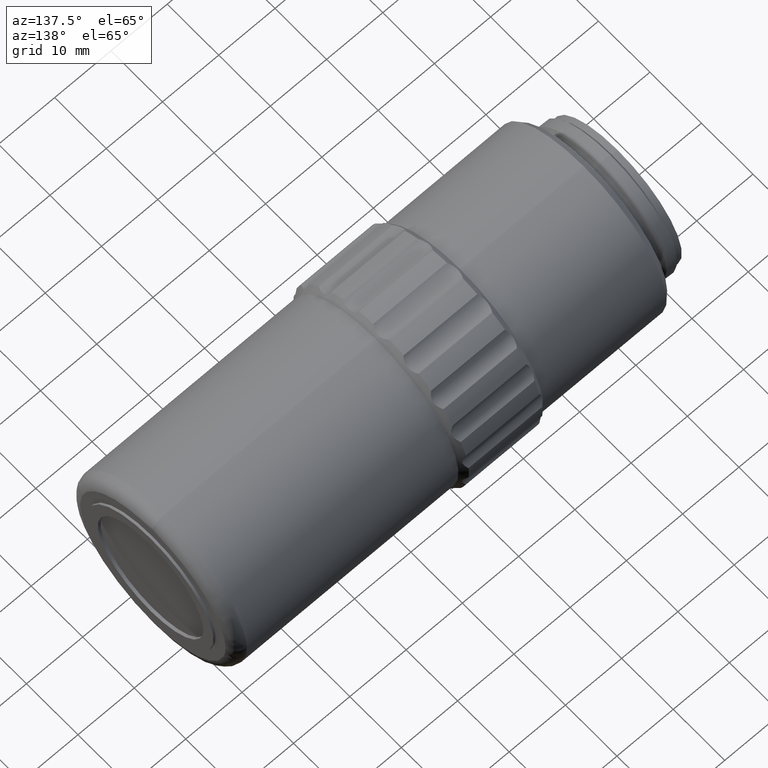
[diagram: clean part render]
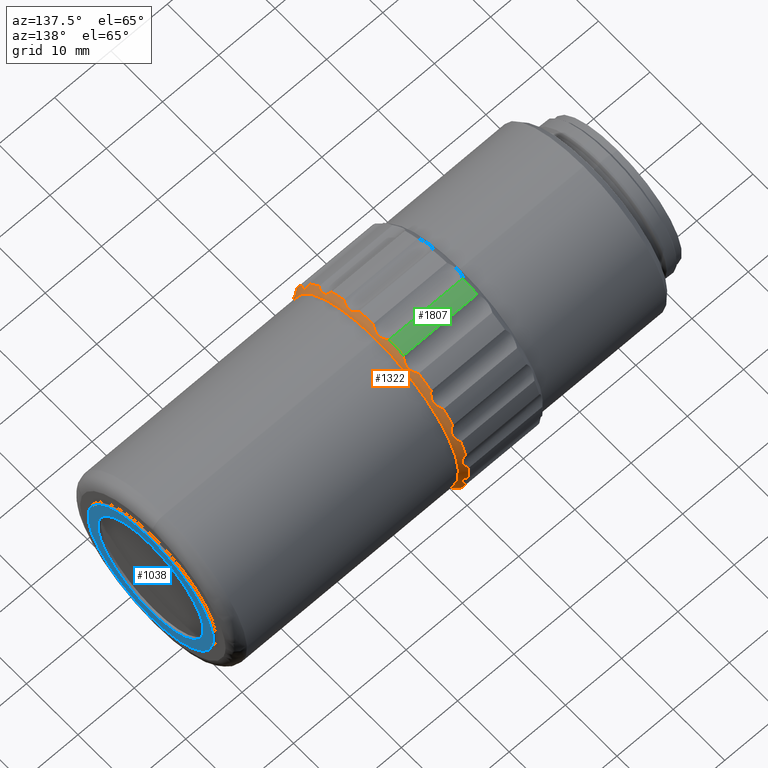
[diagram: same view with three faces highlighted in distinct colors, each labeled with its STEP entity id]
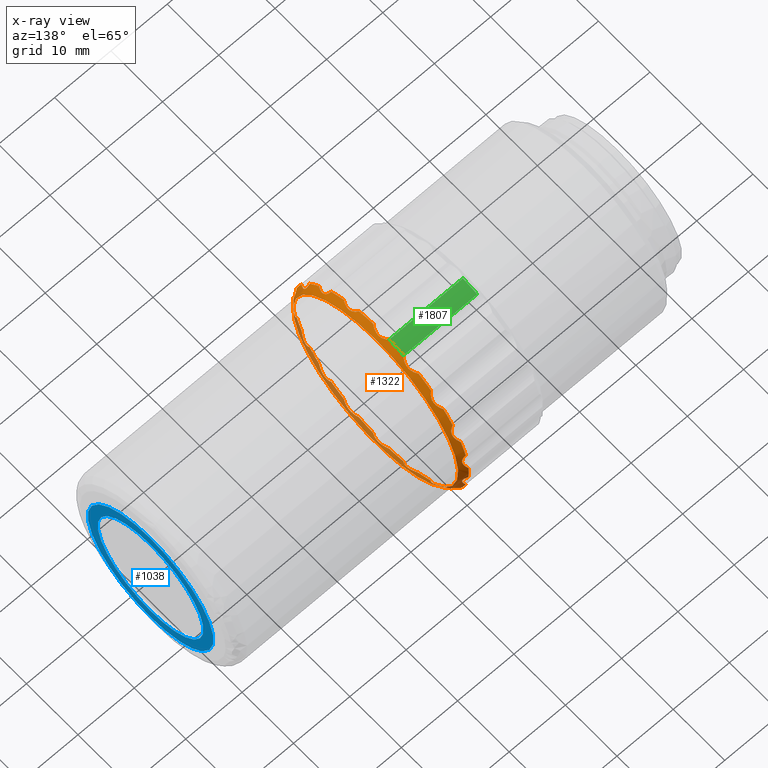
[diagram: x-ray of the same camera — body ghosted, the three highlighted faces saturated]
A machine part, auxiliary view with three faces highlighted in distinct colors.
The next image is the same camera in x-ray (body ghosted, the three faces saturated) — at least one of them is partly hidden behind the body in this view.
Their STEP definitions:

[orange] entity #1322 — the highlighted conical surface has half-angle 45 deg.
#5 = CIRCLE ( 'NONE', #290, 17.00000000000000000 ) ;
#10 = CARTESIAN_POINT ( 'NONE',  ( 49.33703999999998757, 29.08007986503451647, 1.416514203673290728 ) ) ;
#20 = CARTESIAN_POINT ( 'NONE',  ( 49.33703999999997336, 41.68421451916363196, 16.43753695927285818 ) ) ;
#22 = CARTESIAN_POINT ( 'NONE',  ( 49.82519313553095941, 60.17768004909311230, 8.499872551038851753 ) ) ;
#23 = EDGE_CURVE ( 'NONE', #1147, #1777, #1562, .T. ) ;
#26 = CARTESIAN_POINT ( 'NONE',  ( 49.83718322546594948, 35.52309574243637513, -12.73030636577401431 ) ) ;
#27 = CARTESIAN_POINT ( 'NONE',  ( 49.33704000000001599, 46.02096199999999726, 0.000000000000000000 ) ) ;
#32 = CARTESIAN_POINT ( 'NONE',  ( 49.83718322546591395, 29.79624668935391441, -3.004082092195002662 ) ) ;
#42 = CARTESIAN_POINT ( 'NONE',  ( 49.48415766876006927, 29.24340012357270169, 1.604150078087035247 ) ) ;
#52 = B_SPLINE_CURVE_WITH_KNOTS ( 'NONE', 3,
 ( #20, #1750, #166, #717, #1011, #315, #2271, #326, #1358, #1227, #2076, #1709, #705, #668 ),
 .UNSPECIFIED., .F., .F.,
 ( 4, 2, 2, 2, 2, 2, 4 ),
 ( 1.430489624538199204E-17, 0.0008570537395405920496, 0.001285580609310877503, 0.001714107479081163283, 0.002142634348851449062, 0.002571161218621734624, 0.003428214958162300111 ),
 .UNSPECIFIED. ) ;
#64 = CARTESIAN_POINT ( 'NONE',  ( 49.77824610092928026, 56.22807377565807485, 13.03947610223928599 ) ) ;
#67 = CARTESIAN_POINT ( 'NONE',  ( 49.33704000000000889, 46.02096199999999726, 0.000000000000000000 ) ) ;
#69 = VERTEX_POINT ( 'NONE', #827 ) ;
#73 = CARTESIAN_POINT ( 'NONE',  ( 49.82422713112014634, 51.39480538622076011, -15.61454086166568445 ) ) ;
#78 = DIRECTION ( 'NONE',  ( 1.000000000000000000, -0.000000000000000000, -0.000000000000000000 ) ) ;
#79 = VERTEX_POINT ( 'NONE', #486 ) ;
#83 = CARTESIAN_POINT ( 'NONE',  ( 49.77690021752869143, 51.14779506847382606, -15.74715537868998183 ) ) ;
#88 = AXIS2_PLACEMENT_3D ( 'NONE', #1836, #415, #427 ) ;
#90 = VERTEX_POINT ( 'NONE', #1906 ) ;
#92 = DIRECTION ( 'NONE',  ( 1.000000000000000000, -0.000000000000000000, -0.000000000000000000 ) ) ;
#93 = CARTESIAN_POINT ( 'NONE',  ( 49.83718322546596369, 35.30699293778217651, 12.54897458209229022 ) ) ;
#95 = CARTESIAN_POINT ( 'NONE',  ( 49.82422713112009660, 56.85662936152226621, 12.46115531925905273 ) ) ;
#97 = CARTESIAN_POINT ( 'NONE',  ( 49.48389740914204538, 55.79883465147821653, -13.72813594343331189 ) ) ;
#100 = ORIENTED_EDGE ( 'NONE', *, *, #1928, .F. ) ;
#106 = B_SPLINE_CURVE_WITH_KNOTS ( 'NONE', 3,
 ( #719, #340, #1035, #2078, #1926, #1902, #892, #1026, #22, #1737, #1413, #376, #2126, #2272 ),
 .UNSPECIFIED., .F., .F.,
 ( 4, 2, 2, 2, 2, 2, 4 ),
 ( 1.821459649775647449E-17, 0.0008570537395405478142, 0.001285580609310816788, 0.001714107479081083485, 0.002142634348851350616, 0.002571161218621617530, 0.003428214958162146588 ),
 .UNSPECIFIED. ) ;
#110 = CARTESIAN_POINT ( 'NONE',  ( 49.33703999999998757, 29.61726367720591568, 4.463034991433923793 ) ) ;
#114 = CARTESIAN_POINT ( 'NONE',  ( 49.48415766876006927, 62.79852387642730349, -1.604150078087053233 ) ) ;
#126 = CARTESIAN_POINT ( 'NONE',  ( 49.82422713112008950, 62.23047274774312143, -3.153385542406664577 ) ) ;
#130 = CARTESIAN_POINT ( 'NONE',  ( 49.61011795298380633, 55.91343442325894841, 13.49056406336132952 ) ) ;
#136 = CARTESIAN_POINT ( 'NONE',  ( 49.77824610092927315, 62.22167693136037769, 3.427813229224471847 ) ) ;
#143 = CARTESIAN_POINT ( 'NONE',  ( 49.74291650738140191, 31.31202075032431154, 7.683006173255041205 ) ) ;
#148 = VERTEX_POINT ( 'NONE', #1535 ) ;
#150 = CARTESIAN_POINT ( 'NONE',  ( 49.33703999999995915, 59.90894840009008959, -9.804276299192858701 ) ) ;
#151 = CARTESIAN_POINT ( 'NONE',  ( 49.33704000000000889, 50.35770948083630572, 16.43753695927281200 ) ) ;
#154 = CARTESIAN_POINT ( 'NONE',  ( 49.33703999999999468, 61.45570754086772070, 7.125210880294360116 ) ) ;
#155 = CARTESIAN_POINT ( 'NONE',  ( 49.33704000000000889, 46.02096199999999726, 0.000000000000000000 ) ) ;
#156 = CARTESIAN_POINT ( 'NONE',  ( 49.77690021752860616, 31.97150365186628918, 8.767556099430427352 ) ) ;
#166 = CARTESIAN_POINT ( 'NONE',  ( 49.60850845692043265, 41.34222858161454184, 16.06300466438845120 ) ) ;
#168 = DIRECTION ( 'NONE',  ( 1.000000000000000000, -0.000000000000000000, -0.000000000000000000 ) ) ;
#169 = CARTESIAN_POINT ( 'NONE',  ( 49.48389740914201695, 36.24308934852177089, 13.72813594343331545 ) ) ;
#179 = AXIS2_PLACEMENT_3D ( 'NONE', #1108, #783, #2177 ) ;
#180 = CARTESIAN_POINT ( 'NONE',  ( 49.33703999999998047, 29.08007986503451647, -1.416514203673299832 ) ) ;
#182 = CARTESIAN_POINT ( 'NONE',  ( 49.33703999999999468, 46.02096199999999726, 0.000000000000000000 ) ) ;
#186 = DIRECTION ( 'NONE',  ( 0.000000000000000000, 0.000000000000000000, 1.000000000000000000 ) ) ;
#196 = ORIENTED_EDGE ( 'NONE', *, *, #561, .T. ) ;
#201 = EDGE_CURVE ( 'NONE', #958, #69, #2114, .T. ) ;
#213 = B_SPLINE_CURVE_WITH_KNOTS ( 'NONE', 3,
 ( #973, #1720, #504, #845, #1198, #310, #2086, #1185, #1881, #136, #479, #1355, #2243, #651 ),
 .UNSPECIFIED., .F., .F.,
 ( 4, 2, 2, 2, 2, 2, 4 ),
 ( 3.903127820947815962E-18, 0.0008570537395405356711, 0.001285580609310801392, 0.001714107479081067439, 0.002142634348851333269, 0.002571161218621598882, 0.003428214958162131842 ),
 .UNSPECIFIED. ) ;
#218 = AXIS2_PLACEMENT_3D ( 'NONE', #67, #943, #2010 ) ;
#221 = CARTESIAN_POINT ( 'NONE',  ( 49.83718322546597790, 51.79679758193721995, -15.45657204746853175 ) ) ;
#226 = CARTESIAN_POINT ( 'NONE',  ( 49.48415766876007638, 34.19973174975011432, 12.01325914816416329 ) ) ;
#230 = CARTESIAN_POINT ( 'NONE',  ( 49.74229137359053965, 57.21721963540510814, 12.24933554730703378 ) ) ;
#232 = CARTESIAN_POINT ( 'NONE',  ( 49.74229137359054675, 56.13999288115842035, -13.15323611948971738 ) ) ;
#237 = EDGE_CURVE ( 'NONE', #1995, #634, #413, .T. ) ;
#243 = DIRECTION ( 'NONE',  ( 1.000000000000000000, -0.000000000000000000, -0.000000000000000000 ) ) ;
#244 = CARTESIAN_POINT ( 'NONE',  ( 49.48415766876009059, 47.35457561164054852, -16.80123075031171709 ) ) ;
#246 = DIRECTION ( 'NONE',  ( 0.000000000000000000, 1.000000000000000000, 6.217248937900876626E-15 ) ) ;
#249 = CARTESIAN_POINT ( 'NONE',  ( 49.33704000000000889, 50.35770948083630572, 16.43753695927281200 ) ) ;
#266 = CARTESIAN_POINT ( 'NONE',  ( 49.77690021752864880, 45.45276486285489881, -16.55096588861032814 ) ) ;
#272 = ORIENTED_EDGE ( 'NONE', *, *, #2115, .T. ) ;
#277 = CARTESIAN_POINT ( 'NONE',  ( 49.33703999999998047, 44.47420285922230221, -16.92948717948720727 ) ) ;
#278 = CARTESIAN_POINT ( 'NONE',  ( 49.74229137359051123, 45.31785217137128541, -16.58035111081102997 ) ) ;
#290 = AXIS2_PLACEMENT_3D ( 'NONE', #2093, #1741, #513 ) ;
#297 = CARTESIAN_POINT ( 'NONE',  ( 49.60850845692043976, 62.27129880966106157, -3.979600334337187739 ) ) ;
#305 = ORIENTED_EDGE ( 'NONE', *, *, #1801, .T. ) ;
#310 = CARTESIAN_POINT ( 'NONE',  ( 49.82422713112008950, 62.33144101137909843, 2.580766064489510292 ) ) ;
#315 = CARTESIAN_POINT ( 'NONE',  ( 49.82422713112011081, 40.64711861377921309, 15.61454086166572708 ) ) ;
#317 = CARTESIAN_POINT ( 'NONE',  ( 49.82422713112009660, 31.86752573897096852, 8.507192313874586631 ) ) ;
#318 = CARTESIAN_POINT ( 'NONE',  ( 49.82519313553100915, 45.73821546641686098, 16.51001374024769319 ) ) ;
#323 = CARTESIAN_POINT ( 'NONE',  ( 49.77690021752858485, 60.07042034813371600, -8.767556099430425576 ) ) ;
#325 = ORIENTED_EDGE ( 'NONE', *, *, #201, .T. ) ;
#326 = CARTESIAN_POINT ( 'NONE',  ( 49.83718322546596369, 40.24512641806275326, 15.45657204746855840 ) ) ;
#329 = CARTESIAN_POINT ( 'NONE',  ( 49.33704000000000178, 36.32378364731472686, 13.96297718956139100 ) ) ;
#330 = CARTESIAN_POINT ( 'NONE',  ( 49.48415766876009769, 44.68734838835945311, 16.80123075031170998 ) ) ;
#331 = AXIS2_PLACEMENT_3D ( 'NONE', #2023, #631, #246 ) ;
#334 = ORIENTED_EDGE ( 'NONE', *, *, #1794, .T. ) ;
#340 = CARTESIAN_POINT ( 'NONE',  ( 49.48389740914198853, 61.23844647888725490, 7.245459005800728214 ) ) ;
#348 = CARTESIAN_POINT ( 'NONE',  ( 49.33703999999998047, 46.02096199999999726, 0.000000000000000000 ) ) ;
#349 = ORIENTED_EDGE ( 'NONE', *, *, #2268, .T. ) ;
#351 = DIRECTION ( 'NONE',  ( 0.000000000000000000, 1.000000000000000000, -3.552713678800500929E-15 ) ) ;
#356 = CARTESIAN_POINT ( 'NONE',  ( 49.60850845692041844, 32.11174389140475682, 9.297543592584467831 ) ) ;
#357 = CARTESIAN_POINT ( 'NONE',  ( 49.48415766876009059, 36.24294634268018456, -13.72771975950780288 ) ) ;
#363 = VERTEX_POINT ( 'NONE', #1453 ) ;
#364 = CARTESIAN_POINT ( 'NONE',  ( 49.48415766876006927, 61.23806145043451465, -7.245672108642466469 ) ) ;
#376 = CARTESIAN_POINT ( 'NONE',  ( 49.61011795298376370, 59.93088999195955324, 9.293558664531927249 ) ) ;
#379 = ORIENTED_EDGE ( 'NONE', *, *, #1861, .T. ) ;
#384 = CARTESIAN_POINT ( 'NONE',  ( 49.33704000000001599, 50.35770948083634835, -16.43753695927276226 ) ) ;
#386 = AXIS2_PLACEMENT_3D ( 'NONE', #348, #1732, #1582 ) ;
#387 = CARTESIAN_POINT ( 'NONE',  ( 49.60850845692045397, 29.77062519033894006, 3.979600334337169532 ) ) ;
#396 = CARTESIAN_POINT ( 'NONE',  ( 49.61011795298376370, 36.12848957674106742, -13.49056406336132952 ) ) ;
#406 = EDGE_CURVE ( 'NONE', #1583, #148, #1470, .T. ) ;
#407 = CARTESIAN_POINT ( 'NONE',  ( 50.33704000000000178, 46.02096199999999726, -2.040851148208057549E-16 ) ) ;
#412 = CARTESIAN_POINT ( 'NONE',  ( 49.33703999999995915, 59.90894840009008959, -9.804276299192858701 ) ) ;
#413 = CIRCLE ( 'NONE', #1698, 17.00000000000000000 ) ;
#414 = CARTESIAN_POINT ( 'NONE',  ( 49.33703999999999468, 46.02096199999999726, 0.000000000000000000 ) ) ;
#415 = DIRECTION ( 'NONE',  ( 1.000000000000000000, -0.000000000000000000, -0.000000000000000000 ) ) ;
#419 = EDGE_CURVE ( 'NONE', #2035, #1353, #1446, .T. ) ;
#421 = DIRECTION ( 'NONE',  ( 0.000000000000000000, 1.000000000000000000, 0.000000000000000000 ) ) ;
#425 = AXIS2_PLACEMENT_3D ( 'NONE', #596, #1786, #1612 ) ;
#427 = DIRECTION ( 'NONE',  ( 0.000000000000000000, 1.000000000000000000, 0.000000000000000000 ) ) ;
#429 = DIRECTION ( 'NONE',  ( 0.000000000000000000, 1.000000000000000000, 0.000000000000000000 ) ) ;
#433 = DIRECTION ( 'NONE',  ( 1.000000000000000000, -0.000000000000000000, -0.000000000000000000 ) ) ;
#434 = CIRCLE ( 'NONE', #331, 17.00000000000001421 ) ;
#437 = CARTESIAN_POINT ( 'NONE',  ( 49.48389740914199564, 44.68697132165851826, -16.80145764331209080 ) ) ;
#440 = ORIENTED_EDGE ( 'NONE', *, *, #1088, .T. ) ;
#441 = VERTEX_POINT ( 'NONE', #1464 ) ;
#443 = CARTESIAN_POINT ( 'NONE',  ( 49.33703999999998757, 62.42466032279407528, -4.463034991433911358 ) ) ;
#455 = CARTESIAN_POINT ( 'NONE',  ( 49.74229137359049702, 62.22732658115022275, -3.571575765922810231 ) ) ;
#456 = CARTESIAN_POINT ( 'NONE',  ( 49.82422713112015344, 51.94119253261678182, 15.41567220399189075 ) ) ;
#460 = CARTESIAN_POINT ( 'NONE',  ( 49.48415766876011901, 55.79897765731979575, 13.72771975950780821 ) ) ;
#466 = CARTESIAN_POINT ( 'NONE',  ( 49.33704000000002310, 46.02096199999999726, 0.000000000000000000 ) ) ;
#477 = ORIENTED_EDGE ( 'NONE', *, *, #553, .T. ) ;
#479 = CARTESIAN_POINT ( 'NONE',  ( 49.74291650738140191, 62.22720588179112156, 3.569201001427911191 ) ) ;
#486 = CARTESIAN_POINT ( 'NONE',  ( 49.33703999999998757, 38.77725821771979042, -15.37949139323468373 ) ) ;
#492 = EDGE_CURVE ( 'NONE', #1425, #1995, #530, .T. ) ;
#493 = CIRCLE ( 'NONE', #1140, 17.00000000000000000 ) ;
#494 = CARTESIAN_POINT ( 'NONE',  ( 49.60850845692040423, 59.93018010859523770, -9.297543592584473160 ) ) ;
#497 = CARTESIAN_POINT ( 'NONE',  ( 49.77690021752867011, 39.82626761767232182, -15.35848564612279077 ) ) ;
#504 = CARTESIAN_POINT ( 'NONE',  ( 49.60850845692041844, 62.65238706205303032, 1.818341456876850781 ) ) ;
#512 = CARTESIAN_POINT ( 'NONE',  ( 49.83718322546592816, 31.66112224774798278, 8.127785578975540659 ) ) ;
#513 = DIRECTION ( 'NONE',  ( 0.000000000000000000, 1.000000000000000000, 2.664535259100375697E-14 ) ) ;
#518 = CARTESIAN_POINT ( 'NONE',  ( 49.33704000000000178, 44.47420285922232353, 16.92948717948717530 ) ) ;
#530 = B_SPLINE_CURVE_WITH_KNOTS ( 'NONE', 3,
 ( #1652, #782, #2187, #230, #1630, #95, #609, #793, #1485, #64, #1506, #130, #460, #1494 ),
 .UNSPECIFIED., .F., .F.,
 ( 4, 2, 2, 2, 2, 2, 4 ),
 ( 2.255140518769849223E-17, 0.0008570537395405681972, 0.001285580609310841074, 0.001714107479081113843, 0.002142634348851386612, 0.002571161218621659597, 0.003428214958162220313 ),
 .UNSPECIFIED. ) ;
#537 = AXIS2_PLACEMENT_3D ( 'NONE', #414, #243, #1813 ) ;
#538 = CARTESIAN_POINT ( 'NONE',  ( 49.82422713112008950, 29.81145125225689796, 3.153385542406650810 ) ) ;
#542 = ORIENTED_EDGE ( 'NONE', *, *, #23, .F. ) ;
#545 = B_SPLINE_CURVE_WITH_KNOTS ( 'NONE', 3,
 ( #443, #1283, #297, #455, #1114, #126, #2003, #2206, #1134, #1820, #984, #1681, #114, #2184 ),
 .UNSPECIFIED., .F., .F.,
 ( 4, 2, 2, 2, 2, 2, 4 ),
 ( 6.071532165918824830E-18, 0.0008570537395405441279, 0.001285580609310812668, 0.001714107479081081534, 0.002142634348851350182, 0.002571161218621618831, 0.003428214958162156129 ),
 .UNSPECIFIED. ) ;
#553 = EDGE_CURVE ( 'NONE', #1646, #2160, #434, .T. ) ;
#555 = CARTESIAN_POINT ( 'NONE',  ( 49.82519313553103046, 51.93341409690916066, -15.41763307084374546 ) ) ;
#561 = EDGE_CURVE ( 'NONE', #90, #2270, #735, .T. ) ;
#562 = CARTESIAN_POINT ( 'NONE',  ( 49.33703999999999468, 38.77725821771978332, 15.37949139323467307 ) ) ;
#563 = CARTESIAN_POINT ( 'NONE',  ( 49.82519313553098783, 31.58149741732376725, 8.010141189208871637 ) ) ;
#564 = CARTESIAN_POINT ( 'NONE',  ( 49.74291650738142323, 52.35012353516404460, -15.34024937236954855 ) ) ;
#574 = CIRCLE ( 'NONE', #825, 17.00000000000001421 ) ;
#575 = EDGE_CURVE ( 'NONE', #1781, #1781, #1343, .T. ) ;
#581 = AXIS2_PLACEMENT_3D ( 'NONE', #407, #1666, #1644 ) ;
#585 = EDGE_CURVE ( 'NONE', #2024, #1764, #1608, .T. ) ;
#593 = CARTESIAN_POINT ( 'NONE',  ( 49.82519313553098073, 35.19193332115171557, 12.46565831306566352 ) ) ;
#595 = CARTESIAN_POINT ( 'NONE',  ( 49.33703999999999468, 53.26466578228019699, -15.37949139323468017 ) ) ;
#596 = CARTESIAN_POINT ( 'NONE',  ( 49.33704000000000889, 46.02096199999999726, 0.000000000000000000 ) ) ;
#602 = CARTESIAN_POINT ( 'NONE',  ( 49.33704000000000178, 53.26466578228019699, 15.37949139323468017 ) ) ;
#609 = CARTESIAN_POINT ( 'NONE',  ( 49.83689420397104186, 56.73900192251907981, 12.54587797077277322 ) ) ;
#611 = CARTESIAN_POINT ( 'NONE',  ( 49.33704000000002310, 46.02096199999999726, 0.000000000000000000 ) ) ;
#615 = CARTESIAN_POINT ( 'NONE',  ( 49.61011795298376370, 34.45315972681317618, 12.08479540418657017 ) ) ;
#620 = CARTESIAN_POINT ( 'NONE',  ( 49.61011795298374949, 57.58876427318683255, -12.08479540418656661 ) ) ;
#624 = DIRECTION ( 'NONE',  ( 1.000000000000000000, -0.000000000000000000, -0.000000000000000000 ) ) ;
#626 = CARTESIAN_POINT ( 'NONE',  ( 49.74229137359054675, 52.35248318087392505, 15.33995586450727622 ) ) ;
#631 = DIRECTION ( 'NONE',  ( 1.000000000000000000, -0.000000000000000000, -0.000000000000000000 ) ) ;
#634 = VERTEX_POINT ( 'NONE', #602 ) ;
#651 = CARTESIAN_POINT ( 'NONE',  ( 49.33704000000001599, 62.42466032279404686, 4.463034991433892706 ) ) ;
#655 = CARTESIAN_POINT ( 'NONE',  ( 49.33703999999999468, 55.71814035268528187, 13.96297718956140166 ) ) ;
#666 = CARTESIAN_POINT ( 'NONE',  ( 49.60850845692048949, 52.76194463661673950, 15.31240733331347492 ) ) ;
#668 = CARTESIAN_POINT ( 'NONE',  ( 49.33703999999999468, 38.77725821771978332, 15.37949139323467307 ) ) ;
#669 = CARTESIAN_POINT ( 'NONE',  ( 49.33704000000001599, 62.42466032279404686, 4.463034991433892706 ) ) ;
#670 = CARTESIAN_POINT ( 'NONE',  ( 49.33704000000000178, 30.58621645913232356, 7.125210880294359228 ) ) ;
#671 = CARTESIAN_POINT ( 'NONE',  ( 49.33704000000000178, 44.47420285922232353, 16.92948717948717530 ) ) ;
#673 = EDGE_CURVE ( 'NONE', #1891, #2012, #1672, .T. ) ;
#678 = CARTESIAN_POINT ( 'NONE',  ( 49.83718322546593527, 60.38080175225200463, -8.127785578975545988 ) ) ;
#683 = CARTESIAN_POINT ( 'NONE',  ( 49.74291650738144455, 41.00885879755396246, -15.81961940227116870 ) ) ;
#684 = CARTESIAN_POINT ( 'NONE',  ( 49.77690021752860616, 29.62277607563510173, -2.314480119284870518 ) ) ;
#685 = CARTESIAN_POINT ( 'NONE',  ( 49.74291650738145165, 32.01281285169071111, -8.896813698364468337 ) ) ;
#686 = CARTESIAN_POINT ( 'NONE',  ( 49.77690021752864169, 46.58915913714510992, 16.55096588861033169 ) ) ;
#688 = VERTEX_POINT ( 'NONE', #110 ) ;
#696 = CARTESIAN_POINT ( 'NONE',  ( 49.83689420397102054, 31.80451600533105250, 8.376639965934812082 ) ) ;
#705 = CARTESIAN_POINT ( 'NONE',  ( 49.48415766876011901, 39.02141578089250373, 15.33186983759482658 ) ) ;
#707 = CARTESIAN_POINT ( 'NONE',  ( 49.60850845692041844, 29.38953693794697131, -1.818341456876848783 ) ) ;
#709 = CARTESIAN_POINT ( 'NONE',  ( 49.83689420397102054, 35.30292207748090760, -12.54587797077277322 ) ) ;
#714 = CARTESIAN_POINT ( 'NONE',  ( 49.33703999999998047, 62.96184413496547450, 1.416514203673303385 ) ) ;
#717 = CARTESIAN_POINT ( 'NONE',  ( 49.74229137359051123, 41.01085505425491107, 15.82091131322985156 ) ) ;
#719 = CARTESIAN_POINT ( 'NONE',  ( 49.33703999999999468, 61.45570754086772070, 7.125210880294360116 ) ) ;
#723 = CARTESIAN_POINT ( 'NONE',  ( 49.33703999999999468, 46.02096199999999726, 0.000000000000000000 ) ) ;
#735 = CIRCLE ( 'NONE', #218, 16.99999999999998579 ) ;
#739 = CARTESIAN_POINT ( 'NONE',  ( 49.48415766876009059, 53.02050821910746947, -15.33186983759483013 ) ) ;
#756 = CARTESIAN_POINT ( 'NONE',  ( 49.33703999999998757, 58.08791284195770288, 11.97450196783888643 ) ) ;
#776 = ORIENTED_EDGE ( 'NONE', *, *, #935, .T. ) ;
#777 = VERTEX_POINT ( 'NONE', #1534 ) ;
#779 = CARTESIAN_POINT ( 'NONE',  ( 49.83689420397103476, 35.52685220674475630, 12.73377765964754893 ) ) ;
#782 = CARTESIAN_POINT ( 'NONE',  ( 49.48389740914200985, 57.84262694411020078, 12.01319058448289923 ) ) ;
#783 = DIRECTION ( 'NONE',  ( -1.000000000000000000, 0.000000000000000000, 0.000000000000000000 ) ) ;
#784 = AXIS2_PLACEMENT_3D ( 'NONE', #1482, #1272, #2171 ) ;
#793 = CARTESIAN_POINT ( 'NONE',  ( 49.83718322546594948, 56.51882825756361228, 12.73030636577400720 ) ) ;
#795 = CARTESIAN_POINT ( 'NONE',  ( 49.82422713112009660, 56.41121047876222860, -12.83490613950239023 ) ) ;
#796 = EDGE_CURVE ( 'NONE', #148, #1315, #1309, .T. ) ;
#804 = CARTESIAN_POINT ( 'NONE',  ( 49.83718322546595658, 56.73493106221783222, -12.54897458209228844 ) ) ;
#809 = EDGE_CURVE ( 'NONE', #1353, #363, #5, .T. ) ;
#820 = CARTESIAN_POINT ( 'NONE',  ( 49.83718322546601343, 51.53170824842818831, 15.55305667428729066 ) ) ;
#822 = EDGE_CURVE ( 'NONE', #69, #1371, #2201, .T. ) ;
#823 = CARTESIAN_POINT ( 'NONE',  ( 49.33703999999997336, 41.68421451916363196, 16.43753695927285818 ) ) ;
#825 = AXIS2_PLACEMENT_3D ( 'NONE', #1034, #1173, #351 ) ;
#826 = CARTESIAN_POINT ( 'NONE',  ( 49.83718322546597079, 45.87991091177963909, 16.49987880921161576 ) ) ;
#827 = CARTESIAN_POINT ( 'NONE',  ( 49.33703999999999468, 33.95401115804229875, -11.97450196783888821 ) ) ;
#835 = CARTESIAN_POINT ( 'NONE',  ( 49.48389740914201695, 39.02098385211959197, -15.33195408286589867 ) ) ;
#837 = EDGE_CURVE ( 'NONE', #688, #1777, #1566, .T. ) ;
#839 = CARTESIAN_POINT ( 'NONE',  ( 49.48389740914198853, 32.13746819945419020, 9.555998637511374127 ) ) ;
#840 = CARTESIAN_POINT ( 'NONE',  ( 49.74229137359052544, 46.72407182862873043, 16.58035111081103352 ) ) ;
#845 = CARTESIAN_POINT ( 'NONE',  ( 49.74229137359048991, 62.47151406203238366, 2.186719745017569494 ) ) ;
#850 = CARTESIAN_POINT ( 'NONE',  ( 49.74229137359051833, 29.57040993796760020, -2.186719745017569050 ) ) ;
#852 = CARTESIAN_POINT ( 'NONE',  ( 49.77690021752864880, 35.81747045796283402, 13.04400552683793890 ) ) ;
#857 = EDGE_CURVE ( 'NONE', #1410, #2216, #2237, .T. ) ;
#862 = CARTESIAN_POINT ( 'NONE',  ( 49.33703999999998757, 47.56772114077767810, -16.92948717948717885 ) ) ;
#864 = CIRCLE ( 'NONE', #900, 17.00000000000000000 ) ;
#866 = CARTESIAN_POINT ( 'NONE',  ( 49.48415766876013322, 41.52778952056902284, -16.24411527478350692 ) ) ;
#867 = DIRECTION ( 'NONE',  ( 0.000000000000000000, 1.000000000000000000, -7.105427357601001859E-15 ) ) ;
#868 = CARTESIAN_POINT ( 'NONE',  ( 49.77824610092933000, 31.96965089949767247, -8.762061639736755225 ) ) ;
#875 = B_SPLINE_CURVE_WITH_KNOTS ( 'NONE', 3,
 ( #1399, #835, #1385, #2261, #497, #1059, #1189, #1530, #2111, #1898, #683, #1760, #866, #2246 ),
 .UNSPECIFIED., .F., .F.,
 ( 4, 2, 2, 2, 2, 2, 4 ),
 ( 1.561251128379126385E-17, 0.0008570537395405857612, 0.001285580609310873817, 0.001714107479081161982, 0.002142634348851452097, 0.002571161218621741996, 0.003428214958162318325 ),
 .UNSPECIFIED. ) ;
#877 = ORIENTED_EDGE ( 'NONE', *, *, #857, .T. ) ;
#880 = CARTESIAN_POINT ( 'NONE',  ( 49.82422713112007528, 29.71048298862090320, -2.580766064489512512 ) ) ;
#881 = CARTESIAN_POINT ( 'NONE',  ( 49.48389740914203827, 30.80347752111280712, -7.245459005800692687 ) ) ;
#882 = CARTESIAN_POINT ( 'NONE',  ( 49.33703999999998757, 29.08007986503451647, 1.416514203673290728 ) ) ;
#887 = CARTESIAN_POINT ( 'NONE',  ( 49.33704000000000178, 36.32378364731472686, -13.96297718956140699 ) ) ;
#892 = CARTESIAN_POINT ( 'NONE',  ( 49.83689420397100633, 60.38356800619005327, 8.123483399945433447 ) ) ;
#900 = AXIS2_PLACEMENT_3D ( 'NONE', #1104, #433, #938 ) ;
#904 = DIRECTION ( 'NONE',  ( 0.000000000000000000, 1.000000000000000000, 8.881784197001252323E-16 ) ) ;
#907 = AXIS2_PLACEMENT_3D ( 'NONE', #1855, #92, #2194 ) ;
#910 = CARTESIAN_POINT ( 'NONE',  ( 49.74229137359052544, 34.82470436459487928, -12.24933554730703378 ) ) ;
#914 = ORIENTED_EDGE ( 'NONE', *, *, #1294, .T. ) ;
#917 = CARTESIAN_POINT ( 'NONE',  ( 49.33703999999998757, 62.42466032279407528, -4.463034991433911358 ) ) ;
#918 = CARTESIAN_POINT ( 'NONE',  ( 49.77690021752861327, 29.82010887047673009, 3.433610011084513580 ) ) ;
#921 = ORIENTED_EDGE ( 'NONE', *, *, #419, .T. ) ;
#926 = CARTESIAN_POINT ( 'NONE',  ( 49.33703999999998757, 33.95401115804232006, 11.97450196783887932 ) ) ;
#928 = CIRCLE ( 'NONE', #784, 17.00000000000000000 ) ;
#930 = CARTESIAN_POINT ( 'NONE',  ( 49.33703999999998757, 47.56772114077767810, -16.92948717948717885 ) ) ;
#932 = CARTESIAN_POINT ( 'NONE',  ( 49.77690021752862748, 56.22445354203716761, -13.04400552683793357 ) ) ;
#935 = EDGE_CURVE ( 'NONE', #1315, #2070, #969, .T. ) ;
#937 = AXIS2_PLACEMENT_3D ( 'NONE', #466, #624, #421 ) ;
#938 = DIRECTION ( 'NONE',  ( 0.000000000000000000, 1.000000000000000000, 1.065814103640150437E-14 ) ) ;
#943 = DIRECTION ( 'NONE',  ( 1.000000000000000000, -0.000000000000000000, -0.000000000000000000 ) ) ;
#949 = CARTESIAN_POINT ( 'NONE',  ( 49.33703999999998047, 29.08007986503451647, -1.416514203673299832 ) ) ;
#955 = CARTESIAN_POINT ( 'NONE',  ( 49.74291650738140902, 46.72175410136632934, -16.57981987161946691 ) ) ;
#958 = VERTEX_POINT ( 'NONE', #1442 ) ;
#959 = ORIENTED_EDGE ( 'NONE', *, *, #809, .T. ) ;
#966 = AXIS2_PLACEMENT_3D ( 'NONE', #155, #168, #867 ) ;
#967 = CARTESIAN_POINT ( 'NONE',  ( 49.83689420397104186, 45.87480198847892154, -16.50012336588021711 ) ) ;
#969 = CIRCLE ( 'NONE', #537, 17.00000000000000000 ) ;
#970 = CARTESIAN_POINT ( 'NONE',  ( 49.33704000000000178, 55.71814035268526766, -13.96297718956138922 ) ) ;
#973 = CARTESIAN_POINT ( 'NONE',  ( 49.33703999999998047, 62.96184413496547450, 1.416514203673303385 ) ) ;
#982 = EDGE_CURVE ( 'NONE', #1795, #958, #2113, .T. ) ;
#984 = CARTESIAN_POINT ( 'NONE',  ( 49.74291650738140191, 62.47058842444242543, -2.188910012077419420 ) ) ;
#991 = VERTEX_POINT ( 'NONE', #1576 ) ;
#992 = ORIENTED_EDGE ( 'NONE', *, *, #982, .T. ) ;
#1011 = CARTESIAN_POINT ( 'NONE',  ( 49.77690021752862748, 40.89412893152615425, 15.74715537869002624 ) ) ;
#1015 = CARTESIAN_POINT ( 'NONE',  ( 49.77824610092929447, 45.45844958071403852, 16.54982318938170849 ) ) ;
#1018 = ORIENTED_EDGE ( 'NONE', *, *, #406, .T. ) ;
#1026 = CARTESIAN_POINT ( 'NONE',  ( 49.83718322546591395, 60.23975066403165357, 8.372093230236091088 ) ) ;
#1028 = CARTESIAN_POINT ( 'NONE',  ( 49.60850845692045397, 36.13051957456375618, 13.49406587643664146 ) ) ;
#1034 = CARTESIAN_POINT ( 'NONE',  ( 49.33703999999998047, 46.02096199999999726, 0.000000000000000000 ) ) ;
#1035 = CARTESIAN_POINT ( 'NONE',  ( 49.60850845692043976, 61.02747999826900838, 7.396964432529773426 ) ) ;
#1049 = CARTESIAN_POINT ( 'NONE',  ( 49.48415766876014743, 32.13747616120609507, -9.555558641669263054 ) ) ;
#1050 = CARTESIAN_POINT ( 'NONE',  ( 49.33703999999998757, 29.61726367720591568, 4.463034991433923793 ) ) ;
#1055 = EDGE_CURVE ( 'NONE', #2160, #441, #1685, .T. ) ;
#1059 = CARTESIAN_POINT ( 'NONE',  ( 49.82422713112013923, 40.10073146738320560, -15.41567220399188543 ) ) ;
#1065 = ORIENTED_EDGE ( 'NONE', *, *, #796, .T. ) ;
#1072 = EDGE_LOOP ( 'NONE', ( #1242 ) ) ;
#1073 = DIRECTION ( 'NONE',  ( -1.000000000000000000, 0.000000000000000000, 0.000000000000000000 ) ) ;
#1085 = CARTESIAN_POINT ( 'NONE',  ( 49.83718322546600632, 31.80217333596844398, -8.372093230236091088 ) ) ;
#1088 = EDGE_CURVE ( 'NONE', #2216, #1646, #1193, .T. ) ;
#1089 = CARTESIAN_POINT ( 'NONE',  ( 49.74229137359050412, 29.81459741884975401, 3.571575765922792911 ) ) ;
#1104 = CARTESIAN_POINT ( 'NONE',  ( 49.33703999999999468, 46.02096199999999726, 0.000000000000000000 ) ) ;
#1107 = CARTESIAN_POINT ( 'NONE',  ( 49.33703999999998047, 44.47420285922230221, -16.92948717948720727 ) ) ;
#1108 = CARTESIAN_POINT ( 'NONE',  ( 49.33704000000000889, 46.02096199999999726, 0.000000000000000000 ) ) ;
#1113 = EDGE_CURVE ( 'NONE', #1383, #1891, #864, .T. ) ;
#1114 = CARTESIAN_POINT ( 'NONE',  ( 49.77690021752859195, 62.22181512952325022, -3.433610011084526459 ) ) ;
#1115 = CIRCLE ( 'NONE', #425, 16.99999999999998579 ) ;
#1129 = CARTESIAN_POINT ( 'NONE',  ( 49.60850845692045397, 44.92366211032621237, -16.69450802511422438 ) ) ;
#1134 = CARTESIAN_POINT ( 'NONE',  ( 49.82519313553096652, 62.32924995403242008, -2.588482820839978160 ) ) ;
#1136 = CARTESIAN_POINT ( 'NONE',  ( 49.77824610092929447, 34.95203119838304673, 12.31632407541566465 ) ) ;
#1140 = AXIS2_PLACEMENT_3D ( 'NONE', #1765, #1073, #186 ) ;
#1142 = CARTESIAN_POINT ( 'NONE',  ( 49.82422713112011792, 45.73023547181939819, -16.51083150983224357 ) ) ;
#1147 = VERTEX_POINT ( 'NONE', #949 ) ;
#1149 = CARTESIAN_POINT ( 'NONE',  ( 49.83689420397109870, 51.80168204276990451, 15.45505450088585064 ) ) ;
#1170 = CARTESIAN_POINT ( 'NONE',  ( 49.74291650738138770, 60.72990324967569364, -7.683006173255046534 ) ) ;
#1173 = DIRECTION ( 'NONE',  ( 1.000000000000000000, -0.000000000000000000, -0.000000000000000000 ) ) ;
#1175 = CARTESIAN_POINT ( 'NONE',  ( 49.33703999999998757, 58.08791284195767446, -11.97450196783888110 ) ) ;
#1185 = CARTESIAN_POINT ( 'NONE',  ( 49.83718322546592816, 62.24567731064608722, 3.004082092195003106 ) ) ;
#1189 = CARTESIAN_POINT ( 'NONE',  ( 49.83689420397107028, 40.24024195723010422, -15.45505450088583821 ) ) ;
#1193 = B_SPLINE_CURVE_WITH_KNOTS ( 'NONE', 3,
 ( #329, #169, #1028, #1726, #852, #1559, #779, #93, #593, #1136, #2153, #615, #226, #926 ),
 .UNSPECIFIED., .F., .F.,
 ( 4, 2, 2, 2, 2, 2, 4 ),
 ( 1.734723475976807094E-18, 0.0008570537395405512836, 0.001285580609310826112, 0.001714107479081100832, 0.002142634348851375336, 0.002571161218621650490, 0.003428214958162204701 ),
 .UNSPECIFIED. ) ;
#1198 = CARTESIAN_POINT ( 'NONE',  ( 49.77690021752860616, 62.41914792436489989, 2.314480119284867854 ) ) ;
#1211 = FACE_BOUND ( 'NONE', #1072, .T. ) ;
#1227 = CARTESIAN_POINT ( 'NONE',  ( 49.77824610092929447, 39.83200033124972350, 15.35935614810683880 ) ) ;
#1228 = CARTESIAN_POINT ( 'NONE',  ( 49.33704000000001599, 29.61726367720594766, -4.463034991433898035 ) ) ;
#1230 = CARTESIAN_POINT ( 'NONE',  ( 49.83718322546592105, 29.74726016049911337, 2.726265681694551635 ) ) ;
#1239 = CARTESIAN_POINT ( 'NONE',  ( 49.82519313553096652, 29.71267404596758155, 2.588482820839964837 ) ) ;
#1242 = ORIENTED_EDGE ( 'NONE', *, *, #575, .F. ) ;
#1247 = CARTESIAN_POINT ( 'NONE',  ( 49.60850845692044686, 34.44935860872440969, -12.08340433005123593 ) ) ;
#1255 = EDGE_CURVE ( 'NONE', #1371, #79, #928, .T. ) ;
#1256 = CARTESIAN_POINT ( 'NONE',  ( 49.77824610092926605, 31.40713848021163557, 7.787761549644993231 ) ) ;
#1272 = DIRECTION ( 'NONE',  ( 1.000000000000000000, -0.000000000000000000, -0.000000000000000000 ) ) ;
#1276 = CARTESIAN_POINT ( 'NONE',  ( 49.82519313553098783, 46.30370853358314776, -16.51001374024769319 ) ) ;
#1281 = ORIENTED_EDGE ( 'NONE', *, *, #1113, .T. ) ;
#1283 = CARTESIAN_POINT ( 'NONE',  ( 49.48389740914200274, 62.33552269872132712, -4.231266864385903936 ) ) ;
#1294 = EDGE_CURVE ( 'NONE', #634, #1583, #1607, .T. ) ;
#1309 = B_SPLINE_CURVE_WITH_KNOTS ( 'NONE', 3,
 ( #1889, #1337, #2264, #840, #686, #1905, #1521, #826, #318, #1015, #1714, #2250, #330, #671 ),
 .UNSPECIFIED., .F., .F.,
 ( 4, 2, 2, 2, 2, 2, 4 ),
 ( 0.000000000000000000, 0.0008570537395405975790, 0.001285580609310884876, 0.001714107479081172390, 0.002142634348851459904, 0.002571161218621746767, 0.003428214958162296641 ),
 .UNSPECIFIED. ) ;
#1313 = CARTESIAN_POINT ( 'NONE',  ( 49.33703999999998757, 58.08791284195767446, -11.97450196783888110 ) ) ;
#1315 = VERTEX_POINT ( 'NONE', #518 ) ;
#1321 = CARTESIAN_POINT ( 'NONE',  ( 50.33704000000000178, 46.02096199999999726, 15.99999999999999645 ) ) ;
#1322 = ADVANCED_FACE ( 'NONE', ( #1747, #1211 ), #1365, .T. ) ;
#1337 = CARTESIAN_POINT ( 'NONE',  ( 49.48389740914203117, 47.35495267834148336, 16.80145764331209435 ) ) ;
#1343 = CIRCLE ( 'NONE', #581, 15.99999999999999645 ) ;
#1344 = CARTESIAN_POINT ( 'NONE',  ( 49.33703999999998757, 33.95401115804232006, 11.97450196783887932 ) ) ;
#1347 = CARTESIAN_POINT ( 'NONE',  ( 49.74229137359058228, 31.31040182005778050, -7.681264582162521393 ) ) ;
#1353 = VERTEX_POINT ( 'NONE', #862 ) ;
#1355 = CARTESIAN_POINT ( 'NONE',  ( 49.61011795298374949, 62.27060295615641650, 3.975612932441850322 ) ) ;
#1356 = CARTESIAN_POINT ( 'NONE',  ( 49.61011795298380633, 50.70280068296951015, 16.06040833662844491 ) ) ;
#1358 = CARTESIAN_POINT ( 'NONE',  ( 49.82519313553100204, 40.10850990309082675, 15.41763307084376500 ) ) ;
#1365 = CONICAL_SURFACE ( 'NONE', #386, 17.00000000000001421, 0.7853981633974447263 ) ;
#1371 = VERTEX_POINT ( 'NONE', #887 ) ;
#1380 = VERTEX_POINT ( 'NONE', #714 ) ;
#1383 = VERTEX_POINT ( 'NONE', #1395 ) ;
#1385 = CARTESIAN_POINT ( 'NONE',  ( 49.60850845692047528, 39.27997936338326213, -15.31240733331347315 ) ) ;
#1388 = CARTESIAN_POINT ( 'NONE',  ( 49.74291650738139481, 29.81471811820888362, -3.569201001427910303 ) ) ;
#1390 = CARTESIAN_POINT ( 'NONE',  ( 49.33704000000000889, 32.13297559991000441, -9.804276299192871136 ) ) ;
#1391 = CARTESIAN_POINT ( 'NONE',  ( 49.33704000000000178, 36.32378364731472686, -13.96297718956140699 ) ) ;
#1392 = DIRECTION ( 'NONE',  ( 0.000000000000000000, 1.000000000000000000, 0.000000000000000000 ) ) ;
#1395 = CARTESIAN_POINT ( 'NONE',  ( 49.33703999999999468, 53.26466578228019699, -15.37949139323468017 ) ) ;
#1399 = CARTESIAN_POINT ( 'NONE',  ( 49.33703999999998757, 38.77725821771979042, -15.37949139323468373 ) ) ;
#1400 = CARTESIAN_POINT ( 'NONE',  ( 49.61011795298377081, 29.77132104384358158, -3.975612932441852099 ) ) ;
#1403 = CARTESIAN_POINT ( 'NONE',  ( 49.74291650738140191, 35.90049711072168748, -13.15133936029217665 ) ) ;
#1405 = DIRECTION ( 'NONE',  ( 1.000000000000000000, -0.000000000000000000, -0.000000000000000000 ) ) ;
#1410 = VERTEX_POINT ( 'NONE', #562 ) ;
#1413 = CARTESIAN_POINT ( 'NONE',  ( 49.74291650738138770, 60.02911114830940420, 8.896813698364436362 ) ) ;
#1414 = CARTESIAN_POINT ( 'NONE',  ( 49.33703999999999468, 33.95401115804229875, -11.97450196783888821 ) ) ;
#1417 = ORIENTED_EDGE ( 'NONE', *, *, #1570, .T. ) ;
#1425 = VERTEX_POINT ( 'NONE', #756 ) ;
#1429 = CARTESIAN_POINT ( 'NONE',  ( 49.33704000000001599, 30.58621645913232001, -7.125210880294336135 ) ) ;
#1442 = CARTESIAN_POINT ( 'NONE',  ( 49.33704000000000889, 32.13297559991000441, -9.804276299192871136 ) ) ;
#1446 = B_SPLINE_CURVE_WITH_KNOTS ( 'NONE', 3,
 ( #1107, #437, #1129, #278, #266, #1142, #967, #1618, #1276, #1850, #955, #1994, #244, #930 ),
 .UNSPECIFIED., .F., .F.,
 ( 4, 2, 2, 2, 2, 2, 4 ),
 ( 1.699674944388147786E-17, 0.0008570537395405974706, 0.001285580609310877937, 0.001714107479081158729, 0.002142634348851439087, 0.002571161218621720312, 0.003428214958162306616 ),
 .UNSPECIFIED. ) ;
#1453 = CARTESIAN_POINT ( 'NONE',  ( 49.33704000000001599, 50.35770948083634835, -16.43753695927276226 ) ) ;
#1454 = ORIENTED_EDGE ( 'NONE', *, *, #2140, .T. ) ;
#1460 = CARTESIAN_POINT ( 'NONE',  ( 49.77824610092931579, 52.20992366875027102, -15.35935614810682814 ) ) ;
#1464 = CARTESIAN_POINT ( 'NONE',  ( 49.33704000000000178, 30.58621645913232356, 7.125210880294359228 ) ) ;
#1470 = CIRCLE ( 'NONE', #88, 16.99999999999998579 ) ;
#1482 = CARTESIAN_POINT ( 'NONE',  ( 49.33704000000000178, 46.02096199999999726, 0.000000000000000000 ) ) ;
#1485 = CARTESIAN_POINT ( 'NONE',  ( 49.82519313553098783, 56.41679785712319273, 12.82915025000380460 ) ) ;
#1486 = CARTESIAN_POINT ( 'NONE',  ( 49.82519313553098073, 56.84999067884827184, -12.46565831306566174 ) ) ;
#1490 = EDGE_CURVE ( 'NONE', #777, #2035, #2014, .T. ) ;
#1494 = CARTESIAN_POINT ( 'NONE',  ( 49.33703999999999468, 55.71814035268528187, 13.96297718956140166 ) ) ;
#1495 = CARTESIAN_POINT ( 'NONE',  ( 49.48415766876007638, 57.84219225024989441, -12.01325914816416507 ) ) ;
#1496 = ORIENTED_EDGE ( 'NONE', *, *, #585, .T. ) ;
#1504 = AXIS2_PLACEMENT_3D ( 'NONE', #27, #1953, #1392 ) ;
#1506 = CARTESIAN_POINT ( 'NONE',  ( 49.74291650738140191, 56.14142688927830704, 13.15133936029216954 ) ) ;
#1513 = CARTESIAN_POINT ( 'NONE',  ( 49.83689420397100633, 60.23740799466897045, -8.376639965934810306 ) ) ;
#1519 = EDGE_CURVE ( 'NONE', #1717, #1795, #1940, .T. ) ;
#1521 = CARTESIAN_POINT ( 'NONE',  ( 49.83689420397104897, 46.16712201152108719, 16.50012336588021356 ) ) ;
#1530 = CARTESIAN_POINT ( 'NONE',  ( 49.83718322546602053, 40.51021575157182042, -15.55305667428728533 ) ) ;
#1532 = CARTESIAN_POINT ( 'NONE',  ( 49.61011795298375660, 31.01754010897460034, 7.399571673583222875 ) ) ;
#1534 = CARTESIAN_POINT ( 'NONE',  ( 49.33704000000000178, 41.68421451916365328, -16.43753695927281200 ) ) ;
#1535 = CARTESIAN_POINT ( 'NONE',  ( 49.33704000000000178, 47.56772114077768521, 16.92948717948718240 ) ) ;
#1538 = CARTESIAN_POINT ( 'NONE',  ( 49.48389740914198143, 59.90445580054581853, -9.555998637511386562 ) ) ;
#1539 = CARTESIAN_POINT ( 'NONE',  ( 49.77824610092932289, 51.15274612974330637, 15.74413730464014805 ) ) ;
#1543 = CARTESIAN_POINT ( 'NONE',  ( 49.33703999999997336, 32.13297559990991914, 9.804276299192837385 ) ) ;
#1550 = B_SPLINE_CURVE_WITH_KNOTS ( 'NONE', 3,
 ( #384, #1812, #1798, #1639, #83, #73, #2135, #221, #555, #1460, #564, #1627, #739, #595 ),
 .UNSPECIFIED., .F., .F.,
 ( 4, 2, 2, 2, 2, 2, 4 ),
 ( 1.201851678989727231E-17, 0.0008570537395405912907, 0.001285580609310872733, 0.001714107479081154392, 0.002142634348851436485, 0.002571161218621717710, 0.003428214958162281029 ),
 .UNSPECIFIED. ) ;
#1551 = VERTEX_POINT ( 'NONE', #1693 ) ;
#1559 = CARTESIAN_POINT ( 'NONE',  ( 49.82422713112011081, 35.63071352123775881, 12.83490613950239556 ) ) ;
#1562 = CIRCLE ( 'NONE', #179, 17.00000000000000000 ) ;
#1566 = B_SPLINE_CURVE_WITH_KNOTS ( 'NONE', 3,
 ( #1050, #2104, #387, #1089, #918, #538, #1753, #1230, #1239, #1609, #1792, #1617, #42, #882 ),
 .UNSPECIFIED., .F., .F.,
 ( 4, 2, 2, 2, 2, 2, 4 ),
 ( 2.301370753934467615E-17, 0.0008570537395405619088, 0.001285580609310828064, 0.001714107479081094327, 0.002142634348851360591, 0.002571161218621627071, 0.003428214958162163501 ),
 .UNSPECIFIED. ) ;
#1570 = EDGE_CURVE ( 'NONE', #2270, #991, #545, .T. ) ;
#1574 = CARTESIAN_POINT ( 'NONE',  ( 49.82519313553096652, 29.81087088656429884, -3.145384777659983033 ) ) ;
#1576 = CARTESIAN_POINT ( 'NONE',  ( 49.33703999999998047, 62.96184413496547450, -1.416514203673302941 ) ) ;
#1579 = ORIENTED_EDGE ( 'NONE', *, *, #673, .T. ) ;
#1582 = DIRECTION ( 'NONE',  ( 4.081702296416013038E-16, 0.000000000000000000, 1.000000000000000000 ) ) ;
#1583 = VERTEX_POINT ( 'NONE', #249 ) ;
#1587 = B_SPLINE_CURVE_WITH_KNOTS ( 'NONE', 3,
 ( #180, #2102, #707, #850, #684, #880, #1588, #32, #1574, #2116, #1388, #1400, #1761, #1228 ),
 .UNSPECIFIED., .F., .F.,
 ( 4, 2, 2, 2, 2, 2, 4 ),
 ( 9.986437839578378192E-18, 0.0008570537395405388153, 0.001285580609310806380, 0.001714107479081073727, 0.002142634348851341075, 0.002571161218621608856, 0.003428214958162145286 ),
 .UNSPECIFIED. ) ;
#1588 = CARTESIAN_POINT ( 'NONE',  ( 49.83689420397101344, 29.74613216397480997, -2.721276841238304378 ) ) ;
#1607 = B_SPLINE_CURVE_WITH_KNOTS ( 'NONE', 3,
 ( #2219, #2244, #666, #626, #1721, #456, #1149, #820, #1857, #1539, #2233, #1356, #2075, #151 ),
 .UNSPECIFIED., .F., .F.,
 ( 4, 2, 2, 2, 2, 2, 4 ),
 ( 6.938893903907227607E-18, 0.0008570537395405876044, 0.001285580609310874685, 0.001714107479081162198, 0.002142634348851447761, 0.002571161218621735925, 0.003428214958162328733 ),
 .UNSPECIFIED. ) ;
#1608 = CIRCLE ( 'NONE', #1679, 16.99999999999997513 ) ;
#1609 = CARTESIAN_POINT ( 'NONE',  ( 49.77824610092926605, 29.62488855559160683, 2.319880045867564355 ) ) ;
#1612 = DIRECTION ( 'NONE',  ( 0.000000000000000000, 1.000000000000000000, 0.000000000000000000 ) ) ;
#1617 = CARTESIAN_POINT ( 'NONE',  ( 49.61011795298374238, 29.39155459811817650, 1.821850393098595644 ) ) ;
#1618 = CARTESIAN_POINT ( 'NONE',  ( 49.83718322546597079, 46.16201308822037674, -16.49987880921160865 ) ) ;
#1621 = EDGE_CURVE ( 'NONE', #1380, #2024, #213, .T. ) ;
#1627 = CARTESIAN_POINT ( 'NONE',  ( 49.61011795298378502, 52.75789697862287397, -15.31241445645989252 ) ) ;
#1630 = CARTESIAN_POINT ( 'NONE',  ( 49.77690021752862037, 57.09498206104940010, 12.31354536760548690 ) ) ;
#1632 = CARTESIAN_POINT ( 'NONE',  ( 49.83689420397103476, 56.51507179325523111, -12.73377765964754182 ) ) ;
#1639 = CARTESIAN_POINT ( 'NONE',  ( 49.74229137359057518, 51.03106894574504793, -15.82091131322981070 ) ) ;
#1644 = DIRECTION ( 'NONE',  ( 0.000000000000000000, 0.000000000000000000, 1.000000000000000000 ) ) ;
#1646 = VERTEX_POINT ( 'NONE', #1344 ) ;
#1652 = CARTESIAN_POINT ( 'NONE',  ( 49.33703999999998757, 58.08791284195770288, 11.97450196783888643 ) ) ;
#1661 = EDGE_CURVE ( 'NONE', #2253, #90, #1917, .T. ) ;
#1666 = DIRECTION ( 'NONE',  ( 1.000000000000000000, -0.000000000000000000, -2.040851148208006519E-16 ) ) ;
#1672 = B_SPLINE_CURVE_WITH_KNOTS ( 'NONE', 3,
 ( #970, #97, #1677, #232, #932, #795, #1632, #804, #1486, #1999, #2200, #620, #1495, #1313 ),
 .UNSPECIFIED., .F., .F.,
 ( 4, 2, 2, 2, 2, 2, 4 ),
 ( 3.469446951953614189E-18, 0.0008570537395405521510, 0.001285580609310828498, 0.001714107479081104736, 0.002142634348851380974, 0.002571161218621656995, 0.003428214958162201231 ),
 .UNSPECIFIED. ) ;
#1677 = CARTESIAN_POINT ( 'NONE',  ( 49.60850845692047528, 55.91140442543625255, -13.49406587643664324 ) ) ;
#1679 = AXIS2_PLACEMENT_3D ( 'NONE', #611, #78, #429 ) ;
#1681 = CARTESIAN_POINT ( 'NONE',  ( 49.61011795298374949, 62.65036940188181802, -1.821850393098604748 ) ) ;
#1685 = B_SPLINE_CURVE_WITH_KNOTS ( 'NONE', 3,
 ( #1713, #839, #356, #1739, #156, #317, #696, #512, #563, #1256, #143, #1532, #2249, #670 ),
 .UNSPECIFIED., .F., .F.,
 ( 4, 2, 2, 2, 2, 2, 4 ),
 ( 1.398578778534940505E-17, 0.0008570537395405541025, 0.001285580609310826112, 0.001714107479081098664, 0.002142634348851370999, 0.002571161218621643117, 0.003428214958162182583 ),
 .UNSPECIFIED. ) ;
#1690 = ORIENTED_EDGE ( 'NONE', *, *, #1621, .T. ) ;
#1693 = CARTESIAN_POINT ( 'NONE',  ( 49.33704000000000178, 59.90894840009004696, 9.804276299192796529 ) ) ;
#1698 = AXIS2_PLACEMENT_3D ( 'NONE', #723, #1405, #904 ) ;
#1709 = CARTESIAN_POINT ( 'NONE',  ( 49.61011795298376370, 39.28402702137709923, 15.31241445645989252 ) ) ;
#1713 = CARTESIAN_POINT ( 'NONE',  ( 49.33703999999997336, 32.13297559990991914, 9.804276299192837385 ) ) ;
#1714 = CARTESIAN_POINT ( 'NONE',  ( 49.74291650738143034, 45.32016989863367940, 16.57981987161947046 ) ) ;
#1717 = VERTEX_POINT ( 'NONE', #2100 ) ;
#1720 = CARTESIAN_POINT ( 'NONE',  ( 49.48389740914198853, 62.79881279935864313, 1.603818139432604095 ) ) ;
#1721 = CARTESIAN_POINT ( 'NONE',  ( 49.77690021752866301, 52.21565638232765849, 15.35848564612278722 ) ) ;
#1726 = CARTESIAN_POINT ( 'NONE',  ( 49.74229137359055386, 35.90193111884156707, 13.15323611948972271 ) ) ;
#1730 = ORIENTED_EDGE ( 'NONE', *, *, #1255, .T. ) ;
#1732 = DIRECTION ( 'NONE',  ( -1.000000000000000000, 0.000000000000000000, 2.040851148208006519E-16 ) ) ;
#1737 = CARTESIAN_POINT ( 'NONE',  ( 49.77824610092924473, 60.07227310050242863, 8.762061639736732133 ) ) ;
#1739 = CARTESIAN_POINT ( 'NONE',  ( 49.74229137359052544, 32.01351164868641774, 8.899086528648499694 ) ) ;
#1741 = DIRECTION ( 'NONE',  ( 1.000000000000000000, -0.000000000000000000, -0.000000000000000000 ) ) ;
#1747 = FACE_OUTER_BOUND ( 'NONE', #2109, .T. ) ;
#1750 = CARTESIAN_POINT ( 'NONE',  ( 49.48389740914198143, 41.52806624538889935, 16.24445744886885024 ) ) ;
#1753 = CARTESIAN_POINT ( 'NONE',  ( 49.83689420397100633, 29.79689300327163792, 3.009155866290929904 ) ) ;
#1760 = CARTESIAN_POINT ( 'NONE',  ( 49.61011795298379212, 41.33912331703048437, -16.06040833662842715 ) ) ;
#1761 = CARTESIAN_POINT ( 'NONE',  ( 49.48415766876009769, 29.70655927031907595, -4.230856126619375601 ) ) ;
#1762 = CARTESIAN_POINT ( 'NONE',  ( 49.77690021752863458, 34.94694193895062284, -12.31354536760549223 ) ) ;
#1764 = VERTEX_POINT ( 'NONE', #154 ) ;
#1765 = CARTESIAN_POINT ( 'NONE',  ( 49.33704000000000889, 46.02096199999999726, 0.000000000000000000 ) ) ;
#1773 = CARTESIAN_POINT ( 'NONE',  ( 49.82422713112008950, 35.18529463847772121, -12.46115531925905806 ) ) ;
#1777 = VERTEX_POINT ( 'NONE', #10 ) ;
#1778 = CARTESIAN_POINT ( 'NONE',  ( 49.33704000000000178, 55.71814035268526766, -13.96297718956138922 ) ) ;
#1781 = VERTEX_POINT ( 'NONE', #1321 ) ;
#1782 = EDGE_CURVE ( 'NONE', #2012, #2253, #574, .T. ) ;
#1786 = DIRECTION ( 'NONE',  ( 1.000000000000000000, -0.000000000000000000, -0.000000000000000000 ) ) ;
#1789 = CARTESIAN_POINT ( 'NONE',  ( 49.61011795298379212, 32.11103400804058339, -9.293558664531982316 ) ) ;
#1792 = CARTESIAN_POINT ( 'NONE',  ( 49.74291650738137349, 29.57133557555759751, 2.188910012077406986 ) ) ;
#1794 = EDGE_CURVE ( 'NONE', #2070, #1410, #52, .T. ) ;
#1795 = VERTEX_POINT ( 'NONE', #1938 ) ;
#1798 = CARTESIAN_POINT ( 'NONE',  ( 49.60850845692051792, 50.69969541838543137, -16.06300466438838725 ) ) ;
#1801 = EDGE_CURVE ( 'NONE', #79, #777, #875, .T. ) ;
#1812 = CARTESIAN_POINT ( 'NONE',  ( 49.48389740914206669, 50.51385775461107386, -16.24445744886877918 ) ) ;
#1813 = DIRECTION ( 'NONE',  ( 0.000000000000000000, 1.000000000000000000, 1.776356839400250465E-15 ) ) ;
#1820 = CARTESIAN_POINT ( 'NONE',  ( 49.77824610092925894, 62.41703544440839835, -2.319880045867577234 ) ) ;
#1824 = AXIS2_PLACEMENT_3D ( 'NONE', #182, #2136, #2128 ) ;
#1836 = CARTESIAN_POINT ( 'NONE',  ( 49.33704000000001599, 46.02096199999999726, 0.000000000000000000 ) ) ;
#1850 = CARTESIAN_POINT ( 'NONE',  ( 49.77824610092928737, 46.58347441928597021, -16.54982318938170494 ) ) ;
#1855 = CARTESIAN_POINT ( 'NONE',  ( 49.33704000000000178, 46.02096199999999726, 0.000000000000000000 ) ) ;
#1857 = CARTESIAN_POINT ( 'NONE',  ( 49.82519313553102336, 51.40202443458733939, 15.61104309072564966 ) ) ;
#1861 = EDGE_CURVE ( 'NONE', #1551, #1425, #1115, .T. ) ;
#1881 = CARTESIAN_POINT ( 'NONE',  ( 49.82519313553097362, 62.23105311343569923, 3.145384777659983033 ) ) ;
#1884 = CARTESIAN_POINT ( 'NONE',  ( 49.33704000000000178, 61.45570754086768517, -7.125210880294358340 ) ) ;
#1888 = CARTESIAN_POINT ( 'NONE',  ( 49.83689420397108449, 31.65835599381003362, -8.123483399945421013 ) ) ;
#1889 = CARTESIAN_POINT ( 'NONE',  ( 49.33704000000000178, 47.56772114077768521, 16.92948717948718240 ) ) ;
#1891 = VERTEX_POINT ( 'NONE', #1778 ) ;
#1894 = CARTESIAN_POINT ( 'NONE',  ( 49.74229137359048991, 60.02841235131358388, -8.899086528648503247 ) ) ;
#1898 = CARTESIAN_POINT ( 'NONE',  ( 49.77824610092933000, 40.88917787025668105, -15.74413730464013028 ) ) ;
#1902 = CARTESIAN_POINT ( 'NONE',  ( 49.82422713112009660, 60.46512478920966771, 8.003639195957678254 ) ) ;
#1905 = CARTESIAN_POINT ( 'NONE',  ( 49.82422713112011081, 46.31168852818062476, 16.51083150983224002 ) ) ;
#1906 = CARTESIAN_POINT ( 'NONE',  ( 49.33704000000000178, 61.45570754086768517, -7.125210880294358340 ) ) ;
#1913 = CARTESIAN_POINT ( 'NONE',  ( 49.61011795298374238, 61.02438389102538707, -7.399571673583226428 ) ) ;
#1916 = CARTESIAN_POINT ( 'NONE',  ( 49.60850845692048949, 31.01444400173102878, -7.396964432529725464 ) ) ;
#1917 = B_SPLINE_CURVE_WITH_KNOTS ( 'NONE', 3,
 ( #150, #1538, #494, #1894, #323, #2256, #1513, #678, #2232, #2063, #1170, #1913, #364, #1884 ),
 .UNSPECIFIED., .F., .F.,
 ( 4, 2, 2, 2, 2, 2, 4 ),
 ( 2.194270917860438266E-17, 0.0008570537395405623425, 0.001285580609310835003, 0.001714107479081107555, 0.002142634348851380106, 0.002571161218621652658, 0.003428214958162185619 ),
 .UNSPECIFIED. ) ;
#1926 = CARTESIAN_POINT ( 'NONE',  ( 49.77690021752860616, 60.63861748527881446, 7.783409789179931870 ) ) ;
#1928 = EDGE_CURVE ( 'NONE', #1380, #991, #493, .T. ) ;
#1930 = CARTESIAN_POINT ( 'NONE',  ( 49.48389740914199564, 34.19929705588980795, -12.01319058448289923 ) ) ;
#1938 = CARTESIAN_POINT ( 'NONE',  ( 49.33704000000001599, 30.58621645913232001, -7.125210880294336135 ) ) ;
#1940 = CIRCLE ( 'NONE', #937, 16.99999999999997513 ) ;
#1941 = CARTESIAN_POINT ( 'NONE',  ( 49.77824610092929447, 35.81385022434190546, -13.03947610223929310 ) ) ;
#1947 = ORIENTED_EDGE ( 'NONE', *, *, #2152, .T. ) ;
#1953 = DIRECTION ( 'NONE',  ( 1.000000000000000000, -0.000000000000000000, -0.000000000000000000 ) ) ;
#1964 = CIRCLE ( 'NONE', #966, 16.99999999999998579 ) ;
#1970 = CARTESIAN_POINT ( 'NONE',  ( 49.77690021752869853, 31.40330651472126533, -7.783409789179908778 ) ) ;
#1974 = CARTESIAN_POINT ( 'NONE',  ( 49.82519313553099494, 35.62512614287679469, -12.82915025000381171 ) ) ;
#1992 = CARTESIAN_POINT ( 'NONE',  ( 49.33704000000000178, 36.32378364731472686, 13.96297718956139100 ) ) ;
#1994 = CARTESIAN_POINT ( 'NONE',  ( 49.61011795298375660, 47.11445589906591636, -16.69313033811514657 ) ) ;
#1995 = VERTEX_POINT ( 'NONE', #655 ) ;
#1999 = CARTESIAN_POINT ( 'NONE',  ( 49.77824610092927315, 57.08989280161694779, -12.31632407541565399 ) ) ;
#2000 = ORIENTED_EDGE ( 'NONE', *, *, #822, .T. ) ;
#2003 = CARTESIAN_POINT ( 'NONE',  ( 49.83689420397102054, 62.24503099672836015, -3.009155866290945003 ) ) ;
#2009 = ORIENTED_EDGE ( 'NONE', *, *, #1055, .T. ) ;
#2010 = DIRECTION ( 'NONE',  ( 0.000000000000000000, 1.000000000000000000, -1.953992523340275511E-14 ) ) ;
#2012 = VERTEX_POINT ( 'NONE', #1175 ) ;
#2014 = CIRCLE ( 'NONE', #907, 17.00000000000000000 ) ;
#2023 = CARTESIAN_POINT ( 'NONE',  ( 49.33703999999998757, 46.02096199999999726, 0.000000000000000000 ) ) ;
#2024 = VERTEX_POINT ( 'NONE', #669 ) ;
#2035 = VERTEX_POINT ( 'NONE', #277 ) ;
#2050 = ORIENTED_EDGE ( 'NONE', *, *, #237, .T. ) ;
#2063 = CARTESIAN_POINT ( 'NONE',  ( 49.77824610092925894, 60.63478551978837316, -7.787761549644995007 ) ) ;
#2066 = CARTESIAN_POINT ( 'NONE',  ( 49.82519313553104467, 31.86424395090699235, -8.499872551038860635 ) ) ;
#2070 = VERTEX_POINT ( 'NONE', #823 ) ;
#2075 = CARTESIAN_POINT ( 'NONE',  ( 49.48415766876013322, 50.51413447943097168, 16.24411527478354600 ) ) ;
#2076 = CARTESIAN_POINT ( 'NONE',  ( 49.74291650738142323, 39.69180046483592861, 15.34024937236955743 ) ) ;
#2078 = CARTESIAN_POINT ( 'NONE',  ( 49.74229137359051123, 60.73152217994227442, 7.681264582162559584 ) ) ;
#2086 = CARTESIAN_POINT ( 'NONE',  ( 49.83689420397100633, 62.29579183602519521, 2.721276841238303934 ) ) ;
#2093 = CARTESIAN_POINT ( 'NONE',  ( 49.33703999999999468, 46.02096199999999726, 0.000000000000000000 ) ) ;
#2100 = CARTESIAN_POINT ( 'NONE',  ( 49.33704000000001599, 29.61726367720594766, -4.463034991433898035 ) ) ;
#2102 = CARTESIAN_POINT ( 'NONE',  ( 49.48389740914198853, 29.24311120064134784, -1.603818139432597878 ) ) ;
#2103 = CARTESIAN_POINT ( 'NONE',  ( 49.82422713112015344, 31.57679921079044405, -8.003639195957664043 ) ) ;
#2104 = CARTESIAN_POINT ( 'NONE',  ( 49.48389740914200985, 29.70640130127867451, 4.231266864385899495 ) ) ;
#2109 = EDGE_LOOP ( 'NONE', ( #542, #272, #2229, #992, #325, #2000, #1730, #305, #2266, #921, #959, #349, #1281, #1579, #2149, #2258, #196, #1417, #100, #1690, #1496, #1454, #379, #2138, #2050, #914, #1018, #1065, #776, #334, #877, #440, #477, #2009, #1947, #2131 ) ) ;
#2111 = CARTESIAN_POINT ( 'NONE',  ( 49.82519313553103046, 40.63989956541264092, -15.61104309072564078 ) ) ;
#2113 = B_SPLINE_CURVE_WITH_KNOTS ( 'NONE', 3,
 ( #1429, #881, #1916, #1347, #1970, #2103, #1888, #1085, #2066, #868, #685, #1789, #1049, #1390 ),
 .UNSPECIFIED., .F., .F.,
 ( 4, 2, 2, 2, 2, 2, 4 ),
 ( 8.673617379884035472E-19, 0.0008570537395405856528, 0.001285580609310878588, 0.001714107479081169571, 0.002142634348851460337, 0.002571161218621751537, 0.003428214958162343045 ),
 .UNSPECIFIED. ) ;
#2114 = CIRCLE ( 'NONE', #1504, 16.99999999999998579 ) ;
#2115 = EDGE_CURVE ( 'NONE', #1147, #1717, #1587, .T. ) ;
#2116 = CARTESIAN_POINT ( 'NONE',  ( 49.77824610092927315, 29.82024706863964880, -3.427813229224472291 ) ) ;
#2126 = CARTESIAN_POINT ( 'NONE',  ( 49.48415766876006927, 59.90444783879402735, 9.555558641669254172 ) ) ;
#2128 = DIRECTION ( 'NONE',  ( 0.000000000000000000, 1.000000000000000000, 0.000000000000000000 ) ) ;
#2131 = ORIENTED_EDGE ( 'NONE', *, *, #837, .T. ) ;
#2135 = CARTESIAN_POINT ( 'NONE',  ( 49.83689420397107028, 51.52699107420922076, -15.55503383706367870 ) ) ;
#2136 = DIRECTION ( 'NONE',  ( 1.000000000000000000, -0.000000000000000000, -0.000000000000000000 ) ) ;
#2138 = ORIENTED_EDGE ( 'NONE', *, *, #492, .T. ) ;
#2140 = EDGE_CURVE ( 'NONE', #1764, #1551, #106, .T. ) ;
#2149 = ORIENTED_EDGE ( 'NONE', *, *, #1782, .T. ) ;
#2152 = EDGE_CURVE ( 'NONE', #441, #688, #1964, .T. ) ;
#2153 = CARTESIAN_POINT ( 'NONE',  ( 49.74291650738140902, 34.82682132065500724, 12.25041840084325528 ) ) ;
#2160 = VERTEX_POINT ( 'NONE', #1543 ) ;
#2171 = DIRECTION ( 'NONE',  ( 0.000000000000000000, 1.000000000000000000, 0.000000000000000000 ) ) ;
#2177 = DIRECTION ( 'NONE',  ( 0.000000000000000000, 0.000000000000000000, 1.000000000000000000 ) ) ;
#2184 = CARTESIAN_POINT ( 'NONE',  ( 49.33703999999998047, 62.96184413496547450, -1.416514203673302941 ) ) ;
#2187 = CARTESIAN_POINT ( 'NONE',  ( 49.60850845692046107, 57.59256539127557062, 12.08340433005123948 ) ) ;
#2194 = DIRECTION ( 'NONE',  ( 0.000000000000000000, 1.000000000000000000, -1.154631945610162960E-14 ) ) ;
#2200 = CARTESIAN_POINT ( 'NONE',  ( 49.74291650738141612, 57.21510267934500149, -12.25041840084325528 ) ) ;
#2201 = B_SPLINE_CURVE_WITH_KNOTS ( 'NONE', 3,
 ( #1414, #1930, #1247, #910, #1762, #1773, #709, #26, #1974, #1941, #1403, #396, #357, #1391 ),
 .UNSPECIFIED., .F., .F.,
 ( 4, 2, 2, 2, 2, 2, 4 ),
 ( 1.636534854170084423E-17, 0.0008570537395405636435, 0.001285580609310837171, 0.001714107479081110807, 0.002142634348851384877, 0.002571161218621658296, 0.003428214958162212507 ),
 .UNSPECIFIED. ) ;
#2206 = CARTESIAN_POINT ( 'NONE',  ( 49.83718322546592816, 62.29466383950087760, -2.726265681694565846 ) ) ;
#2216 = VERTEX_POINT ( 'NONE', #1992 ) ;
#2219 = CARTESIAN_POINT ( 'NONE',  ( 49.33704000000000178, 53.26466578228019699, 15.37949139323468017 ) ) ;
#2229 = ORIENTED_EDGE ( 'NONE', *, *, #1519, .T. ) ;
#2232 = CARTESIAN_POINT ( 'NONE',  ( 49.82519313553097362, 60.46042658267626280, -8.010141189208873413 ) ) ;
#2233 = CARTESIAN_POINT ( 'NONE',  ( 49.74291650738143034, 51.03306520244601074, 15.81961940227117758 ) ) ;
#2237 = CIRCLE ( 'NONE', #1824, 17.00000000000000000 ) ;
#2243 = CARTESIAN_POINT ( 'NONE',  ( 49.48415766876006927, 62.33536472968091147, 4.230856126619375601 ) ) ;
#2244 = CARTESIAN_POINT ( 'NONE',  ( 49.48389740914203827, 53.02094014788040255, 15.33195408286590933 ) ) ;
#2246 = CARTESIAN_POINT ( 'NONE',  ( 49.33704000000000178, 41.68421451916365328, -16.43753695927281200 ) ) ;
#2249 = CARTESIAN_POINT ( 'NONE',  ( 49.48415766876006217, 30.80386254956549053, 7.245672108642462028 ) ) ;
#2250 = CARTESIAN_POINT ( 'NONE',  ( 49.61011795298377081, 44.92746810093407106, 16.69313033811514302 ) ) ;
#2253 = VERTEX_POINT ( 'NONE', #412 ) ;
#2256 = CARTESIAN_POINT ( 'NONE',  ( 49.82422713112006818, 60.17439826102904021, -8.507192313874591960 ) ) ;
#2258 = ORIENTED_EDGE ( 'NONE', *, *, #1661, .T. ) ;
#2261 = CARTESIAN_POINT ( 'NONE',  ( 49.74229137359056807, 39.68944081912606947, -15.33995586450727089 ) ) ;
#2264 = CARTESIAN_POINT ( 'NONE',  ( 49.60850845692046107, 47.11826188967381057, 16.69450802511422793 ) ) ;
#2266 = ORIENTED_EDGE ( 'NONE', *, *, #1490, .T. ) ;
#2268 = EDGE_CURVE ( 'NONE', #363, #1383, #1550, .T. ) ;
#2270 = VERTEX_POINT ( 'NONE', #917 ) ;
#2271 = CARTESIAN_POINT ( 'NONE',  ( 49.83689420397104897, 40.51493292579076666, 15.55503383706371423 ) ) ;
#2272 = CARTESIAN_POINT ( 'NONE',  ( 49.33704000000000178, 59.90894840009004696, 9.804276299192796529 ) ) ;

[blue] entity #1038 — the highlighted planar face has unit normal (1, 0, 0).
#40 = PLANE ( 'NONE',  #1595 ) ;
#116 = CARTESIAN_POINT ( 'NONE',  ( 90.33704000000000178, 46.02096199999999726, -12.19999999999999929 ) ) ;
#439 = DIRECTION ( 'NONE',  ( -1.000000000000000000, -0.000000000000000000, -0.000000000000000000 ) ) ;
#571 = EDGE_CURVE ( 'NONE', #1117, #1117, #2020, .T. ) ;
#661 = EDGE_LOOP ( 'NONE', ( #895 ) ) ;
#734 = ORIENTED_EDGE ( 'NONE', *, *, #571, .T. ) ;
#738 = DIRECTION ( 'NONE',  ( 1.000000000000000000, 0.000000000000000000, 0.000000000000000000 ) ) ;
#895 = ORIENTED_EDGE ( 'NONE', *, *, #1973, .F. ) ;
#897 = CIRCLE ( 'NONE', #1042, 12.19999999999999929 ) ;
#916 = CARTESIAN_POINT ( 'NONE',  ( 90.33704000000000178, 46.01017559212250774, -2.689813128244150420 ) ) ;
#1013 = FACE_BOUND ( 'NONE', #1123, .T. ) ;
#1038 = ADVANCED_FACE ( 'NONE', ( #1176, #1013 ), #40, .T. ) ;
#1042 = AXIS2_PLACEMENT_3D ( 'NONE', #1849, #1531, #1859 ) ;
#1117 = VERTEX_POINT ( 'NONE', #1246 ) ;
#1123 = EDGE_LOOP ( 'NONE', ( #734 ) ) ;
#1176 = FACE_OUTER_BOUND ( 'NONE', #661, .T. ) ;
#1246 = CARTESIAN_POINT ( 'NONE',  ( 90.33704000000000178, 46.02096199999999726, -10.25000000000000000 ) ) ;
#1455 = DIRECTION ( 'NONE',  ( 0.000000000000000000, 0.000000000000000000, -1.000000000000000000 ) ) ;
#1531 = DIRECTION ( 'NONE',  ( -1.000000000000000000, -0.000000000000000000, -0.000000000000000000 ) ) ;
#1573 = AXIS2_PLACEMENT_3D ( 'NONE', #1988, #439, #1455 ) ;
#1595 = AXIS2_PLACEMENT_3D ( 'NONE', #916, #738, #1615 ) ;
#1615 = DIRECTION ( 'NONE',  ( 0.000000000000000000, 0.000000000000000000, -1.000000000000000000 ) ) ;
#1849 = CARTESIAN_POINT ( 'NONE',  ( 90.33704000000000178, 46.02096199999999726, 0.000000000000000000 ) ) ;
#1859 = DIRECTION ( 'NONE',  ( 0.000000000000000000, 0.000000000000000000, -1.000000000000000000 ) ) ;
#1973 = EDGE_CURVE ( 'NONE', #2053, #2053, #897, .T. ) ;
#1988 = CARTESIAN_POINT ( 'NONE',  ( 90.33704000000000178, 46.02096199999999726, 0.000000000000000000 ) ) ;
#2020 = CIRCLE ( 'NONE', #1573, 10.25000000000000000 ) ;
#2053 = VERTEX_POINT ( 'NONE', #116 ) ;

[green] entity #1807 — the highlighted cylindrical surface (partial cylindrical patch) has radius 17 mm, axis along (-1, 0, 0).
#39 = DIRECTION ( 'NONE',  ( -1.000000000000000000, 0.000000000000000000, 0.000000000000000000 ) ) ;
#88 = AXIS2_PLACEMENT_3D ( 'NONE', #1836, #415, #427 ) ;
#99 = AXIS2_PLACEMENT_3D ( 'NONE', #1064, #1054, #906 ) ;
#148 = VERTEX_POINT ( 'NONE', #1535 ) ;
#239 = CARTESIAN_POINT ( 'NONE',  ( 36.23704000000000036, 46.02096199999999726, 0.000000000000000000 ) ) ;
#249 = CARTESIAN_POINT ( 'NONE',  ( 49.33704000000000889, 50.35770948083630572, 16.43753695927281200 ) ) ;
#406 = EDGE_CURVE ( 'NONE', #1583, #148, #1470, .T. ) ;
#415 = DIRECTION ( 'NONE',  ( 1.000000000000000000, -0.000000000000000000, -0.000000000000000000 ) ) ;
#427 = DIRECTION ( 'NONE',  ( 0.000000000000000000, 1.000000000000000000, 0.000000000000000000 ) ) ;
#490 = EDGE_LOOP ( 'NONE', ( #1350, #1196, #715, #1634 ) ) ;
#622 = VERTEX_POINT ( 'NONE', #1099 ) ;
#636 = CIRCLE ( 'NONE', #1549, 17.00000000000000000 ) ;
#715 = ORIENTED_EDGE ( 'NONE', *, *, #1479, .T. ) ;
#747 = DIRECTION ( 'NONE',  ( 1.000000000000000000, -0.000000000000000000, -0.000000000000000000 ) ) ;
#818 = CARTESIAN_POINT ( 'NONE',  ( 42.83704000000000178, 47.56772114077769942, 16.92948717948717530 ) ) ;
#906 = DIRECTION ( 'NONE',  ( 0.000000000000000000, 0.000000000000000000, 1.000000000000000000 ) ) ;
#908 = LINE ( 'NONE', #1605, #1856 ) ;
#1054 = DIRECTION ( 'NONE',  ( -1.000000000000000000, 0.000000000000000000, 0.000000000000000000 ) ) ;
#1064 = CARTESIAN_POINT ( 'NONE',  ( 42.83704000000000178, 46.02096199999999726, 0.000000000000000000 ) ) ;
#1099 = CARTESIAN_POINT ( 'NONE',  ( 36.23704000000000036, 50.35770948083630572, 16.43753695927281555 ) ) ;
#1110 = EDGE_CURVE ( 'NONE', #622, #1249, #636, .T. ) ;
#1196 = ORIENTED_EDGE ( 'NONE', *, *, #406, .F. ) ;
#1243 = FACE_OUTER_BOUND ( 'NONE', #490, .T. ) ;
#1249 = VERTEX_POINT ( 'NONE', #1832 ) ;
#1350 = ORIENTED_EDGE ( 'NONE', *, *, #1637, .T. ) ;
#1470 = CIRCLE ( 'NONE', #88, 16.99999999999998579 ) ;
#1479 = EDGE_CURVE ( 'NONE', #1583, #622, #908, .T. ) ;
#1535 = CARTESIAN_POINT ( 'NONE',  ( 49.33704000000000178, 47.56772114077768521, 16.92948717948718240 ) ) ;
#1549 = AXIS2_PLACEMENT_3D ( 'NONE', #239, #747, #1844 ) ;
#1583 = VERTEX_POINT ( 'NONE', #249 ) ;
#1605 = CARTESIAN_POINT ( 'NONE',  ( 42.83704000000000178, 50.35770948083630572, 16.43753695927281910 ) ) ;
#1634 = ORIENTED_EDGE ( 'NONE', *, *, #1110, .T. ) ;
#1637 = EDGE_CURVE ( 'NONE', #1249, #148, #1706, .T. ) ;
#1706 = LINE ( 'NONE', #818, #1976 ) ;
#1807 = ADVANCED_FACE ( 'NONE', ( #1243 ), #1823, .T. ) ;
#1823 = CYLINDRICAL_SURFACE ( 'NONE', #99, 17.00000000000000000 ) ;
#1832 = CARTESIAN_POINT ( 'NONE',  ( 36.23704000000000747, 47.56772114077768521, 16.92948717948718595 ) ) ;
#1836 = CARTESIAN_POINT ( 'NONE',  ( 49.33704000000001599, 46.02096199999999726, 0.000000000000000000 ) ) ;
#1844 = DIRECTION ( 'NONE',  ( 0.000000000000000000, -1.591863895602246436E-14, 1.000000000000000000 ) ) ;
#1856 = VECTOR ( 'NONE', #39, 1000.000000000000000 ) ;
#1976 = VECTOR ( 'NONE', #2074, 1000.000000000000000 ) ;
#2074 = DIRECTION ( 'NONE',  ( 1.000000000000000000, -0.000000000000000000, -0.000000000000000000 ) ) ;